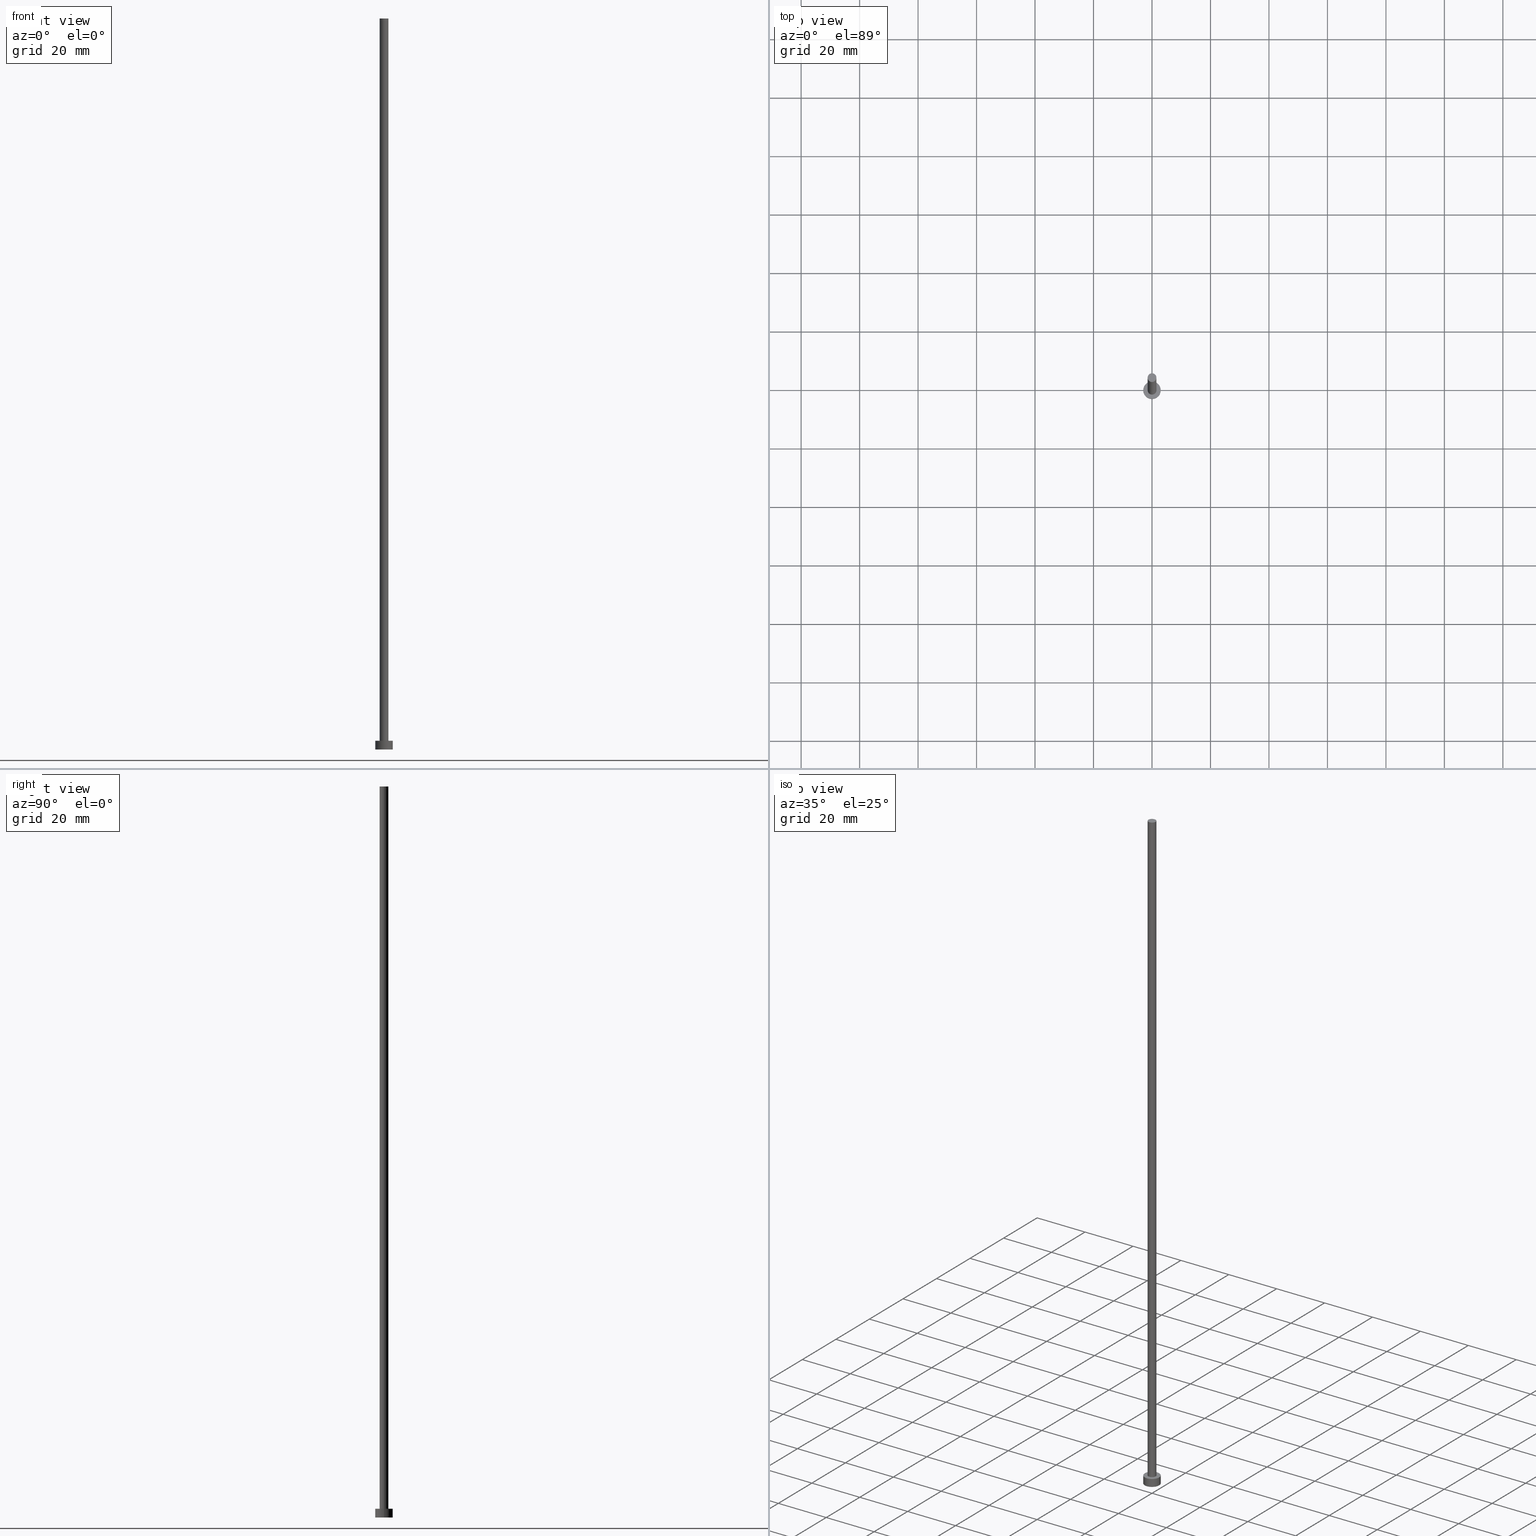
[diagram: canonical four-view strip — front | top / right | iso, engineering-drawing reading convention]
A machine part, canonical four-view strip (front | top / right | iso — engineering-drawing reading convention). The complete STEP part file that produces these views, byte-faithful:
ISO-10303-21;
HEADER;
FILE_DESCRIPTION (( 'STEP AP203' ),
    '1' );
FILE_NAME ('592a.STEP',
    '2023-02-13T14:26:37',
    ( '' ),
    ( '' ),
    'SwSTEP 2.0',
    'SolidWorks 2019',
    '' );
FILE_SCHEMA (( 'CONFIG_CONTROL_DESIGN' ));
ENDSEC;

DATA;
#1 = APPROVAL_DATE_TIME ( #181, #49 ) ;
#2 = CC_DESIGN_PERSON_AND_ORGANIZATION_ASSIGNMENT ( #166, #236, ( #157 ) ) ;
#3 = CIRCLE ( 'NONE', #155, 1.500000000000000222 ) ;
#4 = LINE ( 'NONE', #238, #84 ) ;
#5 = APPROVAL_STATUS ( 'not_yet_approved' ) ;
#6 = PERSON_AND_ORGANIZATION ( #105, #55 ) ;
#7 = FACE_OUTER_BOUND ( 'NONE', #15, .T. ) ;
#8 = LOCAL_TIME ( 15, 26, 37.00000000000000000, #148 ) ;
#9 = PERSON_AND_ORGANIZATION_ROLE ( 'design_owner' ) ;
#10 = ADVANCED_FACE ( 'NONE', ( #42 ), #25, .T. ) ;
#11 = DESIGN_CONTEXT ( 'detailed design', #18, 'design' ) ;
#12 = VERTEX_POINT ( 'NONE', #85 ) ;
#13 = CIRCLE ( 'NONE', #193, 3.000000000000000444 ) ;
#14 = DIRECTION ( 'NONE',  ( 1.000000000000000000, 0.000000000000000000, 0.000000000000000000 ) ) ;
#15 = EDGE_LOOP ( 'NONE', ( #151, #172, #23, #245 ) ) ;
#16 = CARTESIAN_POINT ( 'NONE',  ( 0.000000000000000000, 0.000000000000000000, 3.000000000000000000 ) ) ;
#17 = DIRECTION ( 'NONE',  ( 1.000000000000000000, 0.000000000000000000, -0.000000000000000000 ) ) ;
#18 = APPLICATION_CONTEXT ( 'configuration controlled 3d designs of mechanical parts and assemblies' ) ;
#19 = DIRECTION ( 'NONE',  ( 0.000000000000000000, 0.000000000000000000, 1.000000000000000000 ) ) ;
#20 = CARTESIAN_POINT ( 'NONE',  ( 0.000000000000000000, 0.000000000000000000, 250.0000000000000000 ) ) ;
#21 = CIRCLE ( 'NONE', #211, 1.500000000000000222 ) ;
#22 = CARTESIAN_POINT ( 'NONE',  ( 3.000000000000000444, 3.673940397442060361E-16, 3.000000000000000000 ) ) ;
#23 = ORIENTED_EDGE ( 'NONE', *, *, #102, .T. ) ;
#24 = COORDINATED_UNIVERSAL_TIME_OFFSET ( 1, 0, .AHEAD. ) ;
#25 = CYLINDRICAL_SURFACE ( 'NONE', #32, 1.500000000000000222 ) ;
#26 = PERSON_AND_ORGANIZATION ( #105, #55 ) ;
#27 = DIRECTION ( 'NONE',  ( 0.000000000000000000, 0.000000000000000000, 1.000000000000000000 ) ) ;
#28 = PERSON_AND_ORGANIZATION ( #105, #55 ) ;
#29 = EDGE_CURVE ( 'NONE', #68, #179, #192, .T. ) ;
#30 = EDGE_LOOP ( 'NONE', ( #183, #225 ) ) ;
#31 = COORDINATED_UNIVERSAL_TIME_OFFSET ( 1, 0, .AHEAD. ) ;
#32 = AXIS2_PLACEMENT_3D ( 'NONE', #124, #203, #108 ) ;
#33 = COORDINATED_UNIVERSAL_TIME_OFFSET ( 1, 0, .AHEAD. ) ;
#34 = DIRECTION ( 'NONE',  ( -0.000000000000000000, -0.000000000000000000, -1.000000000000000000 ) ) ;
#35 = CARTESIAN_POINT ( 'NONE',  ( 0.000000000000000000, 0.000000000000000000, 3.000000000000000000 ) ) ;
#36 = DIRECTION ( 'NONE',  ( -1.000000000000000000, 0.000000000000000000, 0.000000000000000000 ) ) ;
#37 = PRODUCT_RELATED_PRODUCT_CATEGORY ( 'detail', '', ( #241 ) ) ;
#38 = CIRCLE ( 'NONE', #138, 3.000000000000000444 ) ;
#39 = DIRECTION ( 'NONE',  ( 1.000000000000000000, 0.000000000000000000, 0.000000000000000000 ) ) ;
#40 = DIRECTION ( 'NONE',  ( 0.000000000000000000, 0.000000000000000000, 1.000000000000000000 ) ) ;
#41 = DIRECTION ( 'NONE',  ( -1.000000000000000000, 0.000000000000000000, 0.000000000000000000 ) ) ;
#42 = FACE_OUTER_BOUND ( 'NONE', #70, .T. ) ;
#43 = APPROVAL ( #206, 'NEUR�EN�' ) ;
#44 = ORIENTED_EDGE ( 'NONE', *, *, #78, .F. ) ;
#45 = CIRCLE ( 'NONE', #152, 3.000000000000000444 ) ;
#46 = APPROVAL_STATUS ( 'not_yet_approved' ) ;
#47 = CARTESIAN_POINT ( 'NONE',  ( 0.000000000000000000, 0.000000000000000000, 0.000000000000000000 ) ) ;
#48 = UNCERTAINTY_MEASURE_WITH_UNIT (LENGTH_MEASURE( 1.000000000000000082E-05 ), #194, 'distance_accuracy_value', 'NONE');
#49 = APPROVAL ( #46, 'NEUR�EN�' ) ;
#50 = ORIENTED_EDGE ( 'NONE', *, *, #109, .F. ) ;
#51 = VERTEX_POINT ( 'NONE', #198 ) ;
#52 = EDGE_CURVE ( 'NONE', #68, #53, #4, .T. ) ;
#53 = VERTEX_POINT ( 'NONE', #221 ) ;
#54 = DIRECTION ( 'NONE',  ( 1.000000000000000000, 0.000000000000000000, 0.000000000000000000 ) ) ;
#55 = ORGANIZATION ( 'NEUR�EN�', 'NEUR�EN�', '' ) ;
#56 = DIRECTION ( 'NONE',  ( 1.000000000000000000, 0.000000000000000000, 0.000000000000000000 ) ) ;
#57 = DIRECTION ( 'NONE',  ( -0.000000000000000000, -0.000000000000000000, -1.000000000000000000 ) ) ;
#58 = CLOSED_SHELL ( 'NONE', ( #10, #207, #73, #119, #114, #237, #162 ) ) ;
#59 = VECTOR ( 'NONE', #57, 1000.000000000000000 ) ;
#60 = LINE ( 'NONE', #154, #232 ) ;
#61 = APPROVAL_PERSON_ORGANIZATION ( #126, #49, #201 ) ;
#62 = FACE_OUTER_BOUND ( 'NONE', #153, .T. ) ;
#63 = ORIENTED_EDGE ( 'NONE', *, *, #137, .T. ) ;
#64 = EDGE_CURVE ( 'NONE', #144, #12, #125, .T. ) ;
#65 = PERSON_AND_ORGANIZATION ( #105, #55 ) ;
#66 = DIRECTION ( 'NONE',  ( -0.000000000000000000, -0.000000000000000000, -1.000000000000000000 ) ) ;
#67 = APPROVAL_DATE_TIME ( #239, #69 ) ;
#68 = VERTEX_POINT ( 'NONE', #254 ) ;
#69 = APPROVAL ( #5, 'NEUR�EN�' ) ;
#70 = EDGE_LOOP ( 'NONE', ( #75, #63, #171, #128 ) ) ;
#71 = FACE_OUTER_BOUND ( 'NONE', #174, .T. ) ;
#72 = DIRECTION ( 'NONE',  ( -0.000000000000000000, -0.000000000000000000, -1.000000000000000000 ) ) ;
#73 = ADVANCED_FACE ( 'NONE', ( #7 ), #215, .T. ) ;
#74 = LINE ( 'NONE', #158, #59 ) ;
#75 = ORIENTED_EDGE ( 'NONE', *, *, #187, .F. ) ;
#76 = CARTESIAN_POINT ( 'NONE',  ( 0.000000000000000000, 0.000000000000000000, 0.000000000000000000 ) ) ;
#77 = LINE ( 'NONE', #22, #161 ) ;
#78 = EDGE_CURVE ( 'NONE', #53, #234, #3, .T. ) ;
#79 = DIRECTION ( 'NONE',  ( 1.000000000000000000, 0.000000000000000000, 0.000000000000000000 ) ) ;
#80 = AXIS2_PLACEMENT_3D ( 'NONE', #189, #135, #247 ) ;
#81 = ORIENTED_EDGE ( 'NONE', *, *, #29, .F. ) ;
#82 = CYLINDRICAL_SURFACE ( 'NONE', #133, 1.500000000000000222 ) ;
#83 = PERSON_AND_ORGANIZATION_ROLE ( 'creator' ) ;
#84 = VECTOR ( 'NONE', #66, 1000.000000000000000 ) ;
#85 = CARTESIAN_POINT ( 'NONE',  ( -3.000000000000000444, 0.000000000000000000, 0.000000000000000000 ) ) ;
#86 = APPLICATION_PROTOCOL_DEFINITION ( 'international standard', 'config_control_design', 1994, #18 ) ;
#87 = CALENDAR_DATE ( 2023, 13, 2 ) ;
#88 = EDGE_CURVE ( 'NONE', #234, #53, #150, .T. ) ;
#89 = ORIENTED_EDGE ( 'NONE', *, *, #137, .F. ) ;
#90 = CALENDAR_DATE ( 2023, 13, 2 ) ;
#91 = PERSON_AND_ORGANIZATION ( #105, #55 ) ;
#92 = SECURITY_CLASSIFICATION_LEVEL ( 'unclassified' ) ;
#93 = AXIS2_PLACEMENT_3D ( 'NONE', #167, #182, #141 ) ;
#94 = CC_DESIGN_DATE_AND_TIME_ASSIGNMENT ( #223, #188, ( #130 ) ) ;
#95 = CARTESIAN_POINT ( 'NONE',  ( 1.500000000000000222, 1.836970198721030181E-16, 250.0000000000000000 ) ) ;
#96 = PLANE ( 'NONE',  #80 ) ;
#97 = CC_DESIGN_PERSON_AND_ORGANIZATION_ASSIGNMENT ( #222, #9, ( #241 ) ) ;
#98 =( GEOMETRIC_REPRESENTATION_CONTEXT ( 3 ) GLOBAL_UNCERTAINTY_ASSIGNED_CONTEXT ( ( #48 ) ) GLOBAL_UNIT_ASSIGNED_CONTEXT ( ( #194, #197, #103 ) ) REPRESENTATION_CONTEXT ( 'NONE', 'WORKASPACE' ) );
#99 = FACE_BOUND ( 'NONE', #226, .T. ) ;
#100 = CARTESIAN_POINT ( 'NONE',  ( 0.000000000000000000, 0.000000000000000000, 3.000000000000000000 ) ) ;
#101 = DIRECTION ( 'NONE',  ( -0.000000000000000000, -0.000000000000000000, -1.000000000000000000 ) ) ;
#102 = EDGE_CURVE ( 'NONE', #51, #12, #60, .T. ) ;
#103 =( NAMED_UNIT ( * ) SI_UNIT ( $, .STERADIAN. ) SOLID_ANGLE_UNIT ( ) );
#104 = FACE_OUTER_BOUND ( 'NONE', #146, .T. ) ;
#105 = PERSON ( 'NEUR�EN�', 'NEUR�EN�', 'NEUR�EN�', ('NEUR�EN�'), ('NEUR�EN�'), ('NEUR�EN�') ) ;
#106 = CARTESIAN_POINT ( 'NONE',  ( 0.000000000000000000, 0.000000000000000000, 3.000000000000000000 ) ) ;
#107 = CALENDAR_DATE ( 2023, 13, 2 ) ;
#108 = DIRECTION ( 'NONE',  ( -1.000000000000000000, 0.000000000000000000, 0.000000000000000000 ) ) ;
#109 = EDGE_CURVE ( 'NONE', #12, #144, #13, .T. ) ;
#110 = DIRECTION ( 'NONE',  ( 1.000000000000000000, 0.000000000000000000, 0.000000000000000000 ) ) ;
#111 = DATE_AND_TIME ( #90, #8 ) ;
#112 = PRODUCT_DEFINITION_SHAPE ( 'NONE', 'NONE',  #180 ) ;
#113 = APPROVAL_PERSON_ORGANIZATION ( #91, #43, #129 ) ;
#114 = ADVANCED_FACE ( 'NONE', ( #139 ), #96, .F. ) ;
#115 = DIRECTION ( 'NONE',  ( 1.000000000000000000, 0.000000000000000000, 0.000000000000000000 ) ) ;
#116 = AXIS2_PLACEMENT_3D ( 'NONE', #106, #214, #196 ) ;
#117 = CC_DESIGN_APPROVAL ( #43, ( #130 ) ) ;
#118 = FACE_OUTER_BOUND ( 'NONE', #30, .T. ) ;
#119 = ADVANCED_FACE ( 'NONE', ( #99, #71 ), #176, .T. ) ;
#120 = AXIS2_PLACEMENT_3D ( 'NONE', #47, #27, #110 ) ;
#121 = DIRECTION ( 'NONE',  ( 1.000000000000000000, 0.000000000000000000, 0.000000000000000000 ) ) ;
#122 = CYLINDRICAL_SURFACE ( 'NONE', #116, 3.000000000000000444 ) ;
#123 = DIRECTION ( 'NONE',  ( 0.000000000000000000, 0.000000000000000000, 1.000000000000000000 ) ) ;
#124 = CARTESIAN_POINT ( 'NONE',  ( 0.000000000000000000, 0.000000000000000000, 250.0000000000000000 ) ) ;
#125 = CIRCLE ( 'NONE', #120, 3.000000000000000444 ) ;
#126 = PERSON_AND_ORGANIZATION ( #105, #55 ) ;
#127 = LOCAL_TIME ( 15, 26, 37.00000000000000000, #33 ) ;
#128 = ORIENTED_EDGE ( 'NONE', *, *, #52, .F. ) ;
#129 = APPROVAL_ROLE ( '' ) ;
#130 = SECURITY_CLASSIFICATION ( '', '', #92 ) ;
#131 = ORIENTED_EDGE ( 'NONE', *, *, #64, .T. ) ;
#132 = EDGE_LOOP ( 'NONE', ( #50, #165 ) ) ;
#133 = AXIS2_PLACEMENT_3D ( 'NONE', #216, #213, #41 ) ;
#134 = DIRECTION ( 'NONE',  ( 0.000000000000000000, 0.000000000000000000, 1.000000000000000000 ) ) ;
#135 = DIRECTION ( 'NONE',  ( 0.000000000000000000, 0.000000000000000000, 1.000000000000000000 ) ) ;
#136 = CARTESIAN_POINT ( 'NONE',  ( 3.000000000000000444, 3.673940397442060361E-16, 0.000000000000000000 ) ) ;
#137 = EDGE_CURVE ( 'NONE', #179, #234, #74, .T. ) ;
#138 = AXIS2_PLACEMENT_3D ( 'NONE', #178, #123, #121 ) ;
#139 = FACE_OUTER_BOUND ( 'NONE', #132, .T. ) ;
#140 = CARTESIAN_POINT ( 'NONE',  ( 1.500000000000000222, 1.836970198721030181E-16, 3.000000000000000000 ) ) ;
#141 = DIRECTION ( 'NONE',  ( 1.000000000000000000, 0.000000000000000000, 0.000000000000000000 ) ) ;
#142 = CC_DESIGN_SECURITY_CLASSIFICATION ( #130, ( #157 ) ) ;
#143 = ORIENTED_EDGE ( 'NONE', *, *, #217, .T. ) ;
#144 = VERTEX_POINT ( 'NONE', #136 ) ;
#145 = CC_DESIGN_PERSON_AND_ORGANIZATION_ASSIGNMENT ( #6, #240, ( #130 ) ) ;
#146 = EDGE_LOOP ( 'NONE', ( #89, #81, #208, #185 ) ) ;
#147 = ORIENTED_EDGE ( 'NONE', *, *, #248, .T. ) ;
#148 = COORDINATED_UNIVERSAL_TIME_OFFSET ( 1, 0, .AHEAD. ) ;
#149 = APPROVAL_DATE_TIME ( #242, #43 ) ;
#150 = CIRCLE ( 'NONE', #199, 1.500000000000000222 ) ;
#151 = ORIENTED_EDGE ( 'NONE', *, *, #217, .F. ) ;
#152 = AXIS2_PLACEMENT_3D ( 'NONE', #100, #250, #39 ) ;
#153 = EDGE_LOOP ( 'NONE', ( #218, #143, #131, #243 ) ) ;
#154 = CARTESIAN_POINT ( 'NONE',  ( -3.000000000000000444, 0.000000000000000000, 3.000000000000000000 ) ) ;
#155 = AXIS2_PLACEMENT_3D ( 'NONE', #16, #249, #115 ) ;
#156 = CC_DESIGN_PERSON_AND_ORGANIZATION_ASSIGNMENT ( #26, #83, ( #157 ) ) ;
#157 = PRODUCT_DEFINITION_FORMATION_WITH_SPECIFIED_SOURCE ( 'LIBOVOLN�', '', #241, .NOT_KNOWN. ) ;
#158 = CARTESIAN_POINT ( 'NONE',  ( 1.500000000000000222, 1.836970198721030181E-16, 250.0000000000000000 ) ) ;
#159 = AXIS2_PLACEMENT_3D ( 'NONE', #231, #34, #36 ) ;
#160 = DIRECTION ( 'NONE',  ( 0.000000000000000000, 0.000000000000000000, 1.000000000000000000 ) ) ;
#161 = VECTOR ( 'NONE', #101, 1000.000000000000000 ) ;
#162 = ADVANCED_FACE ( 'NONE', ( #118 ), #190, .T. ) ;
#163 = CARTESIAN_POINT ( 'NONE',  ( 0.000000000000000000, 0.000000000000000000, 0.000000000000000000 ) ) ;
#164 = EDGE_CURVE ( 'NONE', #51, #186, #45, .T. ) ;
#165 = ORIENTED_EDGE ( 'NONE', *, *, #64, .F. ) ;
#166 = PERSON_AND_ORGANIZATION ( #105, #55 ) ;
#167 = CARTESIAN_POINT ( 'NONE',  ( 0.000000000000000000, 0.000000000000000000, 250.0000000000000000 ) ) ;
#168 = APPROVAL_ROLE ( '' ) ;
#169 = COORDINATED_UNIVERSAL_TIME_OFFSET ( 1, 0, .AHEAD. ) ;
#170 = CALENDAR_DATE ( 2023, 13, 2 ) ;
#171 = ORIENTED_EDGE ( 'NONE', *, *, #88, .T. ) ;
#172 = ORIENTED_EDGE ( 'NONE', *, *, #164, .F. ) ;
#173 = APPROVAL_PERSON_ORGANIZATION ( #28, #69, #168 ) ;
#174 = EDGE_LOOP ( 'NONE', ( #191, #147 ) ) ;
#175 = CARTESIAN_POINT ( 'NONE',  ( 3.000000000000000444, 3.673940397442060361E-16, 3.000000000000000000 ) ) ;
#176 = PLANE ( 'NONE',  #253 ) ;
#177 = CC_DESIGN_DATE_AND_TIME_ASSIGNMENT ( #111, #184, ( #180 ) ) ;
#178 = CARTESIAN_POINT ( 'NONE',  ( 0.000000000000000000, 0.000000000000000000, 3.000000000000000000 ) ) ;
#179 = VERTEX_POINT ( 'NONE', #95 ) ;
#180 = PRODUCT_DEFINITION ( 'NEZN�M�', '', #157, #11 ) ;
#181 = DATE_AND_TIME ( #107, #200 ) ;
#182 = DIRECTION ( 'NONE',  ( 0.000000000000000000, 0.000000000000000000, 1.000000000000000000 ) ) ;
#183 = ORIENTED_EDGE ( 'NONE', *, *, #29, .T. ) ;
#184 = DATE_TIME_ROLE ( 'creation_date' ) ;
#185 = ORIENTED_EDGE ( 'NONE', *, *, #78, .T. ) ;
#186 = VERTEX_POINT ( 'NONE', #175 ) ;
#187 = EDGE_CURVE ( 'NONE', #179, #68, #21, .T. ) ;
#188 = DATE_TIME_ROLE ( 'classification_date' ) ;
#189 = CARTESIAN_POINT ( 'NONE',  ( 0.000000000000000000, 0.000000000000000000, 0.000000000000000000 ) ) ;
#190 = PLANE ( 'NONE',  #205 ) ;
#191 = ORIENTED_EDGE ( 'NONE', *, *, #164, .T. ) ;
#192 = CIRCLE ( 'NONE', #93, 1.500000000000000222 ) ;
#193 = AXIS2_PLACEMENT_3D ( 'NONE', #76, #134, #56 ) ;
#194 =( LENGTH_UNIT ( ) NAMED_UNIT ( * ) SI_UNIT ( .MILLI., .METRE. ) );
#195 = LOCAL_TIME ( 15, 26, 37.00000000000000000, #169 ) ;
#196 = DIRECTION ( 'NONE',  ( -1.000000000000000000, 0.000000000000000000, 0.000000000000000000 ) ) ;
#197 =( NAMED_UNIT ( * ) PLANE_ANGLE_UNIT ( ) SI_UNIT ( $, .RADIAN. ) );
#198 = CARTESIAN_POINT ( 'NONE',  ( -3.000000000000000444, 0.000000000000000000, 3.000000000000000000 ) ) ;
#199 = AXIS2_PLACEMENT_3D ( 'NONE', #228, #19, #14 ) ;
#200 = LOCAL_TIME ( 15, 26, 37.00000000000000000, #24 ) ;
#201 = APPROVAL_ROLE ( '' ) ;
#202 = MECHANICAL_CONTEXT ( 'NONE', #255, 'mechanical' ) ;
#203 = DIRECTION ( 'NONE',  ( -0.000000000000000000, -0.000000000000000000, -1.000000000000000000 ) ) ;
#204 = CALENDAR_DATE ( 2023, 13, 2 ) ;
#205 = AXIS2_PLACEMENT_3D ( 'NONE', #20, #160, #212 ) ;
#206 = APPROVAL_STATUS ( 'not_yet_approved' ) ;
#207 = ADVANCED_FACE ( 'NONE', ( #62 ), #122, .T. ) ;
#208 = ORIENTED_EDGE ( 'NONE', *, *, #52, .T. ) ;
#209 = DIRECTION ( 'NONE',  ( 0.000000000000000000, 0.000000000000000000, 1.000000000000000000 ) ) ;
#210 = CC_DESIGN_PERSON_AND_ORGANIZATION_ASSIGNMENT ( #65, #220, ( #180 ) ) ;
#211 = AXIS2_PLACEMENT_3D ( 'NONE', #246, #227, #54 ) ;
#212 = DIRECTION ( 'NONE',  ( 1.000000000000000000, 0.000000000000000000, -0.000000000000000000 ) ) ;
#213 = DIRECTION ( 'NONE',  ( -0.000000000000000000, -0.000000000000000000, -1.000000000000000000 ) ) ;
#214 = DIRECTION ( 'NONE',  ( -0.000000000000000000, -0.000000000000000000, -1.000000000000000000 ) ) ;
#215 = CYLINDRICAL_SURFACE ( 'NONE', #159, 3.000000000000000444 ) ;
#216 = CARTESIAN_POINT ( 'NONE',  ( 0.000000000000000000, 0.000000000000000000, 250.0000000000000000 ) ) ;
#217 = EDGE_CURVE ( 'NONE', #186, #144, #77, .T. ) ;
#218 = ORIENTED_EDGE ( 'NONE', *, *, #248, .F. ) ;
#219 = ORIENTED_EDGE ( 'NONE', *, *, #88, .F. ) ;
#220 = PERSON_AND_ORGANIZATION_ROLE ( 'creator' ) ;
#221 = CARTESIAN_POINT ( 'NONE',  ( -1.500000000000000222, 0.000000000000000000, 3.000000000000000000 ) ) ;
#222 = PERSON_AND_ORGANIZATION ( #105, #55 ) ;
#223 = DATE_AND_TIME ( #87, #127 ) ;
#224 = SHAPE_DEFINITION_REPRESENTATION ( #112, #229 ) ;
#225 = ORIENTED_EDGE ( 'NONE', *, *, #187, .T. ) ;
#226 = EDGE_LOOP ( 'NONE', ( #44, #219 ) ) ;
#227 = DIRECTION ( 'NONE',  ( 0.000000000000000000, 0.000000000000000000, 1.000000000000000000 ) ) ;
#228 = CARTESIAN_POINT ( 'NONE',  ( 0.000000000000000000, 0.000000000000000000, 3.000000000000000000 ) ) ;
#229 = ADVANCED_BREP_SHAPE_REPRESENTATION ( '592a', ( #252, #235 ), #98 ) ;
#230 = CC_DESIGN_APPROVAL ( #69, ( #180 ) ) ;
#231 = CARTESIAN_POINT ( 'NONE',  ( 0.000000000000000000, 0.000000000000000000, 3.000000000000000000 ) ) ;
#232 = VECTOR ( 'NONE', #72, 1000.000000000000000 ) ;
#233 = CC_DESIGN_APPROVAL ( #49, ( #157 ) ) ;
#234 = VERTEX_POINT ( 'NONE', #140 ) ;
#235 = AXIS2_PLACEMENT_3D ( 'NONE', #163, #40, #79 ) ;
#236 = PERSON_AND_ORGANIZATION_ROLE ( 'design_supplier' ) ;
#237 = ADVANCED_FACE ( 'NONE', ( #104 ), #82, .T. ) ;
#238 = CARTESIAN_POINT ( 'NONE',  ( -1.500000000000000222, 0.000000000000000000, 250.0000000000000000 ) ) ;
#239 = DATE_AND_TIME ( #204, #195 ) ;
#240 = PERSON_AND_ORGANIZATION_ROLE ( 'classification_officer' ) ;
#241 = PRODUCT ( '592a', '592a', '', ( #202 ) ) ;
#242 = DATE_AND_TIME ( #170, #244 ) ;
#243 = ORIENTED_EDGE ( 'NONE', *, *, #102, .F. ) ;
#244 = LOCAL_TIME ( 15, 26, 37.00000000000000000, #31 ) ;
#245 = ORIENTED_EDGE ( 'NONE', *, *, #109, .T. ) ;
#246 = CARTESIAN_POINT ( 'NONE',  ( 0.000000000000000000, 0.000000000000000000, 250.0000000000000000 ) ) ;
#247 = DIRECTION ( 'NONE',  ( 1.000000000000000000, 0.000000000000000000, -0.000000000000000000 ) ) ;
#248 = EDGE_CURVE ( 'NONE', #186, #51, #38, .T. ) ;
#249 = DIRECTION ( 'NONE',  ( 0.000000000000000000, 0.000000000000000000, 1.000000000000000000 ) ) ;
#250 = DIRECTION ( 'NONE',  ( 0.000000000000000000, 0.000000000000000000, 1.000000000000000000 ) ) ;
#251 = APPLICATION_PROTOCOL_DEFINITION ( 'international standard', 'config_control_design', 1994, #255 ) ;
#252 = MANIFOLD_SOLID_BREP ( 'P�idat vysunut�m3', #58 ) ;
#253 = AXIS2_PLACEMENT_3D ( 'NONE', #35, #209, #17 ) ;
#254 = CARTESIAN_POINT ( 'NONE',  ( -1.500000000000000222, 0.000000000000000000, 250.0000000000000000 ) ) ;
#255 = APPLICATION_CONTEXT ( 'configuration controlled 3d designs of mechanical parts and assemblies' ) ;
ENDSEC;
END-ISO-10303-21;
